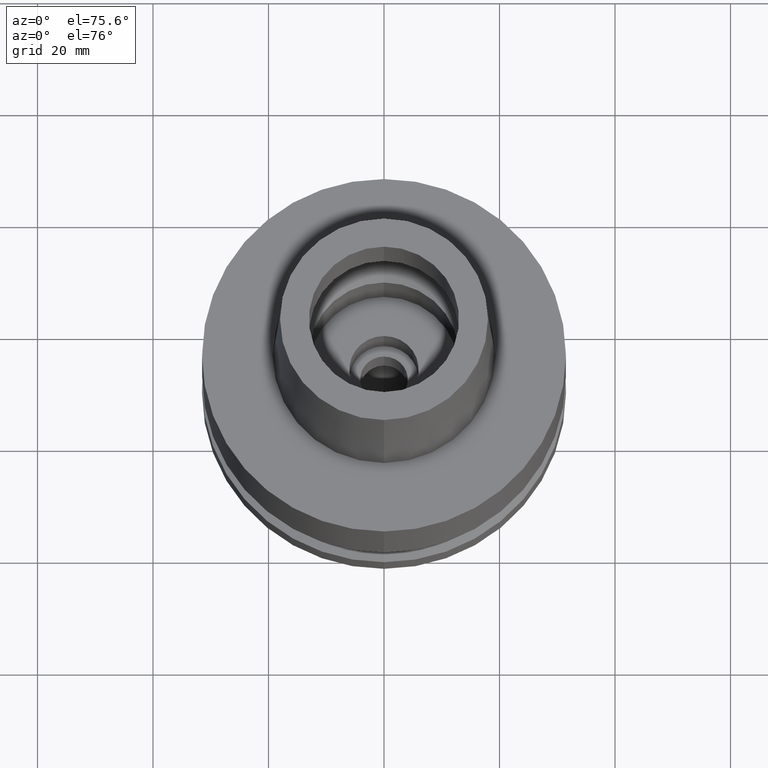
[diagram: clean part render]
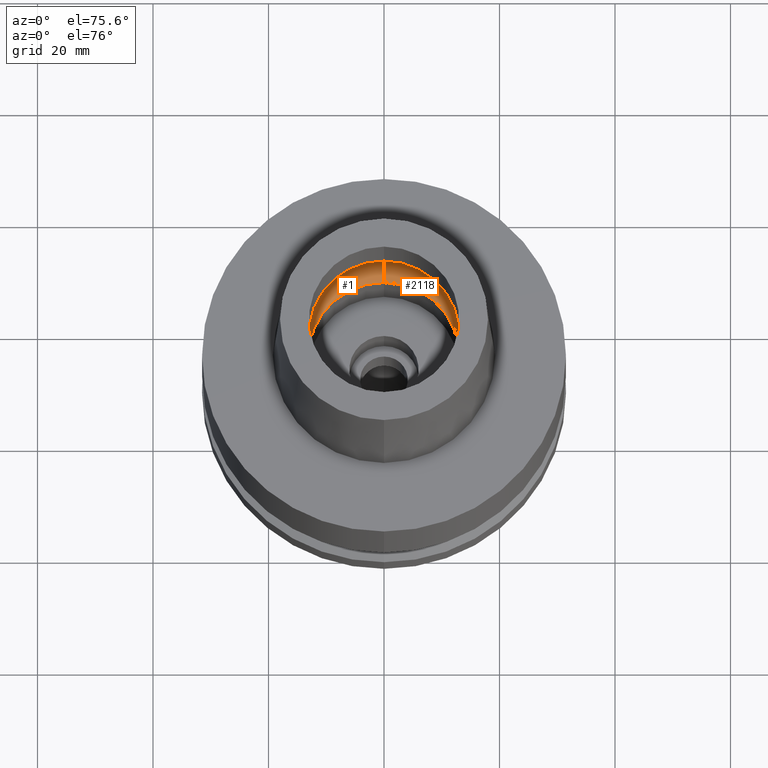
[diagram: same view with one multi-face feature highlighted, each face labeled with its STEP entity id]
A machine part, auxiliary view. The highlighted faces form ONE feature: a constant-radius fillet chain: 2 tangent blend faces with common blend radius 6 mm. The faces share edges in the B-rep.
Their STEP definitions:
[1] entity #2118 (Torus):
#5 = VERTEX_POINT ( 'NONE', #1435 ) ;
#21 = DIRECTION ( 'NONE',  ( 1.000000000000000000, 0.0000000000000000000, 0.0000000000000000000 ) ) ;
#248 = DIRECTION ( 'NONE',  ( 0.0000000000000000000, 1.000000000000000000, 0.0000000000000000000 ) ) ;
#260 = ORIENTED_EDGE ( 'NONE', *, *, #804, .F. ) ;
#330 = CARTESIAN_POINT ( 'NONE',  ( 0.0000000000000000000, 0.0000000000000000000, 5.245999999999999552 ) ) ;
#402 = AXIS2_PLACEMENT_3D ( 'NONE', #2219, #505, #532 ) ;
#427 = DIRECTION ( 'NONE',  ( 0.0000000000000000000, 0.0000000000000000000, 1.000000000000000000 ) ) ;
#505 = DIRECTION ( 'NONE',  ( 0.0000000000000000000, 0.0000000000000000000, 1.000000000000000000 ) ) ;
#532 = DIRECTION ( 'NONE',  ( 0.0000000000000000000, -1.000000000000000000, 0.0000000000000000000 ) ) ;
#741 = EDGE_LOOP ( 'NONE', ( #742, #1512, #260, #2381 ) ) ;
#742 = ORIENTED_EDGE ( 'NONE', *, *, #1597, .F. ) ;
#772 = VERTEX_POINT ( 'NONE', #2575 ) ;
#773 = CIRCLE ( 'NONE', #2578, 6.000000000000000000 ) ;
#804 = EDGE_CURVE ( 'NONE', #1767, #772, #2605, .T. ) ;
#860 = CARTESIAN_POINT ( 'NONE',  ( 0.0000000000000000000, 10.00000000000000000, 5.245999999999999552 ) ) ;
#890 = DIRECTION ( 'NONE',  ( 0.0000000000000000000, 0.5000000000000169864, -0.8660254037844289376 ) ) ;
#902 = AXIS2_PLACEMENT_3D ( 'NONE', #330, #1186, #2036 ) ;
#929 = CARTESIAN_POINT ( 'NONE',  ( 0.0000000000000000000, 13.00000000000000000, 0.04984757729343999855 ) ) ;
#997 = TOROIDAL_SURFACE ( 'NONE', #1757, 10.00000000000000000, 6.000000000000000000 ) ;
#1144 = FACE_OUTER_BOUND ( 'NONE', #741, .T. ) ;
#1186 = DIRECTION ( 'NONE',  ( 0.0000000000000000000, 0.0000000000000000000, -1.000000000000000000 ) ) ;
#1220 = DIRECTION ( 'NONE',  ( -1.000000000000000000, 0.0000000000000000000, 0.0000000000000000000 ) ) ;
#1349 = AXIS2_PLACEMENT_3D ( 'NONE', #1708, #1220, #2729 ) ;
#1411 = CARTESIAN_POINT ( 'NONE',  ( 0.0000000000000000000, 16.00000000000000000, 5.245999999999999552 ) ) ;
#1435 = CARTESIAN_POINT ( 'NONE',  ( 0.0000000000000000000, -13.00000000000000000, 0.04984757729338999688 ) ) ;
#1512 = ORIENTED_EDGE ( 'NONE', *, *, #1817, .T. ) ;
#1597 = EDGE_CURVE ( 'NONE', #5, #2628, #1614, .T. ) ;
#1614 = CIRCLE ( 'NONE', #402, 13.00000000000000000 ) ;
#1708 = CARTESIAN_POINT ( 'NONE',  ( 0.0000000000000000000, -10.00000000000000000, 5.245999999999999552 ) ) ;
#1757 = AXIS2_PLACEMENT_3D ( 'NONE', #2625, #427, #248 ) ;
#1767 = VERTEX_POINT ( 'NONE', #1411 ) ;
#1817 = EDGE_CURVE ( 'NONE', #5, #772, #2523, .T. ) ;
#2036 = DIRECTION ( 'NONE',  ( 0.0000000000000000000, 1.000000000000000000, 0.0000000000000000000 ) ) ;
#2118 = ADVANCED_FACE ( 'NONE', ( #1144 ), #997, .F. ) ;
#2219 = CARTESIAN_POINT ( 'NONE',  ( 0.0000000000000000000, 0.0000000000000000000, 0.04984757729338999688 ) ) ;
#2381 = ORIENTED_EDGE ( 'NONE', *, *, #2507, .F. ) ;
#2507 = EDGE_CURVE ( 'NONE', #2628, #1767, #773, .T. ) ;
#2523 = CIRCLE ( 'NONE', #1349, 6.000000000000000000 ) ;
#2575 = CARTESIAN_POINT ( 'NONE',  ( 0.0000000000000000000, -16.00000000000000000, 5.245999999999999552 ) ) ;
#2578 = AXIS2_PLACEMENT_3D ( 'NONE', #860, #21, #890 ) ;
#2605 = CIRCLE ( 'NONE', #902, 16.00000000000000000 ) ;
#2625 = CARTESIAN_POINT ( 'NONE',  ( 0.0000000000000000000, 0.0000000000000000000, 5.245999999999999552 ) ) ;
#2628 = VERTEX_POINT ( 'NONE', #929 ) ;
#2729 = DIRECTION ( 'NONE',  ( 0.0000000000000000000, -0.5000000000000169864, -0.8660254037844289376 ) ) ;
[2] entity #1 (Torus):
#1 = ADVANCED_FACE ( 'NONE', ( #2458 ), #163, .F. ) ;
#5 = VERTEX_POINT ( 'NONE', #1435 ) ;
#21 = DIRECTION ( 'NONE',  ( 1.000000000000000000, 0.0000000000000000000, 0.0000000000000000000 ) ) ;
#63 = DIRECTION ( 'NONE',  ( 0.0000000000000000000, -1.000000000000000000, 0.0000000000000000000 ) ) ;
#149 = ORIENTED_EDGE ( 'NONE', *, *, #1817, .F. ) ;
#163 = TOROIDAL_SURFACE ( 'NONE', #1925, 10.00000000000000000, 6.000000000000000000 ) ;
#353 = AXIS2_PLACEMENT_3D ( 'NONE', #1989, #2432, #63 ) ;
#431 = EDGE_LOOP ( 'NONE', ( #1255, #149, #998, #565 ) ) ;
#438 = DIRECTION ( 'NONE',  ( 0.0000000000000000000, 1.000000000000000000, 0.0000000000000000000 ) ) ;
#565 = ORIENTED_EDGE ( 'NONE', *, *, #2507, .T. ) ;
#772 = VERTEX_POINT ( 'NONE', #2575 ) ;
#773 = CIRCLE ( 'NONE', #2578, 6.000000000000000000 ) ;
#860 = CARTESIAN_POINT ( 'NONE',  ( 0.0000000000000000000, 10.00000000000000000, 5.245999999999999552 ) ) ;
#890 = DIRECTION ( 'NONE',  ( 0.0000000000000000000, 0.5000000000000169864, -0.8660254037844289376 ) ) ;
#929 = CARTESIAN_POINT ( 'NONE',  ( 0.0000000000000000000, 13.00000000000000000, 0.04984757729343999855 ) ) ;
#998 = ORIENTED_EDGE ( 'NONE', *, *, #1978, .F. ) ;
#1046 = CARTESIAN_POINT ( 'NONE',  ( 0.0000000000000000000, 0.0000000000000000000, 0.04984757729338999688 ) ) ;
#1103 = EDGE_CURVE ( 'NONE', #772, #1767, #1576, .T. ) ;
#1220 = DIRECTION ( 'NONE',  ( -1.000000000000000000, 0.0000000000000000000, 0.0000000000000000000 ) ) ;
#1255 = ORIENTED_EDGE ( 'NONE', *, *, #1103, .F. ) ;
#1262 = AXIS2_PLACEMENT_3D ( 'NONE', #1046, #1887, #438 ) ;
#1349 = AXIS2_PLACEMENT_3D ( 'NONE', #1708, #1220, #2729 ) ;
#1386 = CARTESIAN_POINT ( 'NONE',  ( 0.0000000000000000000, 0.0000000000000000000, 5.245999999999999552 ) ) ;
#1388 = CIRCLE ( 'NONE', #1262, 13.00000000000000000 ) ;
#1411 = CARTESIAN_POINT ( 'NONE',  ( 0.0000000000000000000, 16.00000000000000000, 5.245999999999999552 ) ) ;
#1435 = CARTESIAN_POINT ( 'NONE',  ( 0.0000000000000000000, -13.00000000000000000, 0.04984757729338999688 ) ) ;
#1576 = CIRCLE ( 'NONE', #353, 16.00000000000000000 ) ;
#1708 = CARTESIAN_POINT ( 'NONE',  ( 0.0000000000000000000, -10.00000000000000000, 5.245999999999999552 ) ) ;
#1767 = VERTEX_POINT ( 'NONE', #1411 ) ;
#1817 = EDGE_CURVE ( 'NONE', #5, #772, #2523, .T. ) ;
#1887 = DIRECTION ( 'NONE',  ( 0.0000000000000000000, 0.0000000000000000000, 1.000000000000000000 ) ) ;
#1925 = AXIS2_PLACEMENT_3D ( 'NONE', #1386, #2252, #2538 ) ;
#1978 = EDGE_CURVE ( 'NONE', #2628, #5, #1388, .T. ) ;
#1989 = CARTESIAN_POINT ( 'NONE',  ( 0.0000000000000000000, 0.0000000000000000000, 5.245999999999999552 ) ) ;
#2252 = DIRECTION ( 'NONE',  ( 0.0000000000000000000, 0.0000000000000000000, 1.000000000000000000 ) ) ;
#2432 = DIRECTION ( 'NONE',  ( 0.0000000000000000000, 0.0000000000000000000, -1.000000000000000000 ) ) ;
#2458 = FACE_OUTER_BOUND ( 'NONE', #431, .T. ) ;
#2507 = EDGE_CURVE ( 'NONE', #2628, #1767, #773, .T. ) ;
#2523 = CIRCLE ( 'NONE', #1349, 6.000000000000000000 ) ;
#2538 = DIRECTION ( 'NONE',  ( 0.0000000000000000000, 1.000000000000000000, 0.0000000000000000000 ) ) ;
#2575 = CARTESIAN_POINT ( 'NONE',  ( 0.0000000000000000000, -16.00000000000000000, 5.245999999999999552 ) ) ;
#2578 = AXIS2_PLACEMENT_3D ( 'NONE', #860, #21, #890 ) ;
#2628 = VERTEX_POINT ( 'NONE', #929 ) ;
#2729 = DIRECTION ( 'NONE',  ( 0.0000000000000000000, -0.5000000000000169864, -0.8660254037844289376 ) ) ;